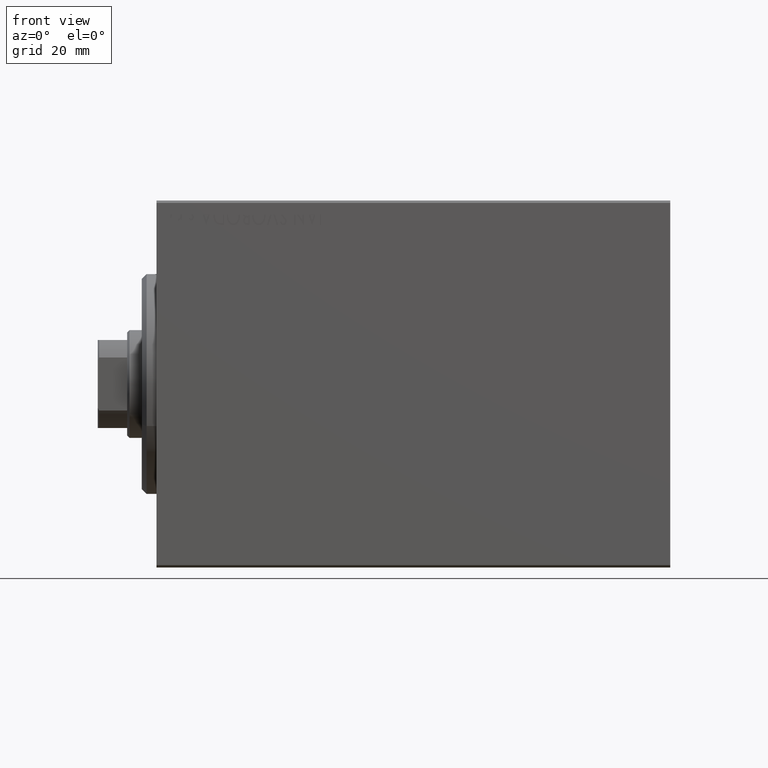
[diagram: clean part render]
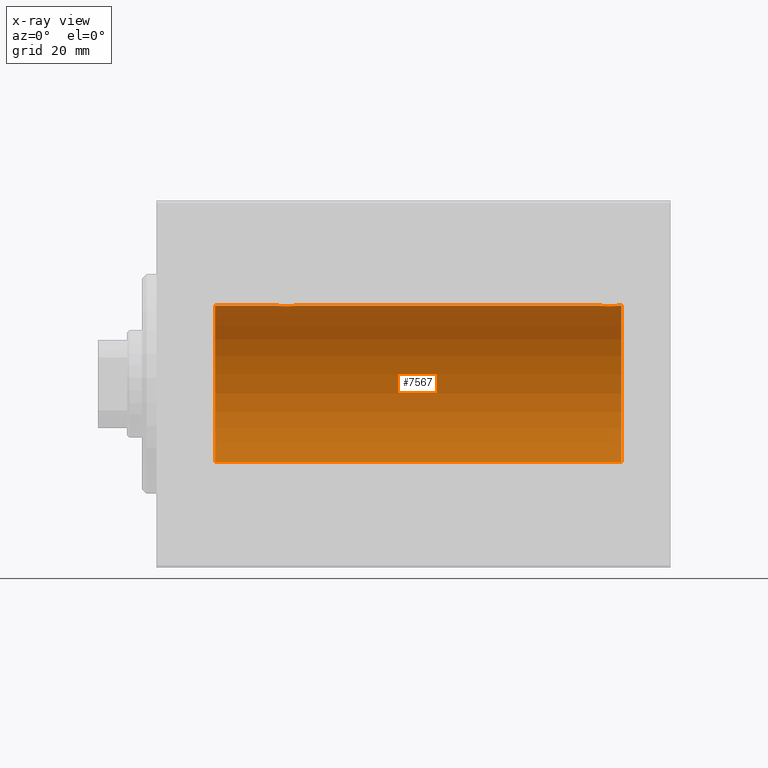
[diagram: x-ray — body ghosted, one internal face saturated and labeled with its STEP entity id]
A machine part, front view, then the same camera in x-ray: the body is ghosted and one INTERNAL B-rep face — a face not visible from any outside direction — is saturated and labeled: STEP entity #7567.
In plain terms, the highlighted cylindrical surface (partial cylindrical patch) has radius 16 mm, axis along (-1, -0, -0).
Its self-contained STEP definition (entity closure, byte-faithful):
#452 = CARTESIAN_POINT ( 'NONE',  ( 90.99262839687573035, 1.321075116345886258, 15.94564302722882942 ) ) ;
#590 = CARTESIAN_POINT ( 'NONE',  ( 27.50659181559580801, 1.747750603376303058, 15.90457341008072412 ) ) ;
#792 = DIRECTION ( 'NONE',  ( 0.000000000000000000, 0.000000000000000000, 1.000000000000000000 ) ) ;
#811 = CARTESIAN_POINT ( 'NONE',  ( 28.09051504852098802, 1.219564485341770865, 15.95382484008322699 ) ) ;
#1017 = CARTESIAN_POINT ( 'NONE',  ( 25.85613031966986952, 1.898058445420888196, 15.88709929148890510 ) ) ;
#1096 = CARTESIAN_POINT ( 'NONE',  ( 94.29713414748218270, 0.8874076679346769581, 15.97583181162460697 ) ) ;
#1298 = CARTESIAN_POINT ( 'NONE',  ( 11.99999999999999645, 1.959434878635765131E-15, -16.00000000000000000 ) ) ;
#1916 = CARTESIAN_POINT ( 'NONE',  ( 94.50000000000000000, 3.332617433452402987E-15, 16.00000000000000000 ) ) ;
#2577 = DIRECTION ( 'NONE',  ( 0.000000000000000000, 0.000000000000000000, 1.000000000000000000 ) ) ;
#3782 = CARTESIAN_POINT ( 'NONE',  ( 91.28032342557720824, 1.590393755196005010, 15.92092783521424337 ) ) ;
#3921 = CARTESIAN_POINT ( 'NONE',  ( 24.50000000000000000, -2.739674480787312950E-23, 16.00000000000000000 ) ) ;
#4364 = CARTESIAN_POINT ( 'NONE',  ( 26.37014691649502041, 2.000047931387144207, 15.87450182760079542 ) ) ;
#4757 = DIRECTION ( 'NONE',  ( -1.000000000000000000, -0.000000000000000000, -0.000000000000000000 ) ) ;
#6874 = VERTEX_POINT ( 'NONE', #15608 ) ;
#7566 = CARTESIAN_POINT ( 'NONE',  ( 94.50000000000001421, 0.1322838750249263340, 16.00000000000000000 ) ) ;
#7567 = ADVANCED_FACE ( 'NONE', ( #21270 ), #38580, .F. ) ;
#7699 = CARTESIAN_POINT ( 'NONE',  ( 24.70250071394960756, 0.8866640484200106753, 15.97587307151817804 ) ) ;
#7924 = CARTESIAN_POINT ( 'NONE',  ( 24.50000000000000711, 0.1305944228192306433, 16.00000000000000000 ) ) ;
#8130 = CARTESIAN_POINT ( 'NONE',  ( 28.49999999999998579, 0.1322838750249258899, 15.99999999999999289 ) ) ;
#8428 = CARTESIAN_POINT ( 'NONE',  ( 90.50000000000000000, -2.738806733791569837E-23, 16.00000000000000000 ) ) ;
#8660 = EDGE_CURVE ( 'NONE', #32094, #22863, #37928, .T. ) ;
#10302 = ORIENTED_EDGE ( 'NONE', *, *, #30224, .T. ) ;
#10366 = EDGE_CURVE ( 'NONE', #21991, #6874, #16231, .T. ) ;
#10644 = CIRCLE ( 'NONE', #36208, 16.00000000000000000 ) ;
#10826 = CARTESIAN_POINT ( 'NONE',  ( 25.61382242942730159, 1.797743958659259400, 15.89876304682112007 ) ) ;
#11251 = CARTESIAN_POINT ( 'NONE',  ( 24.56430947073870641, 0.5198215460038738689, 15.99206840425679665 ) ) ;
#11336 = CARTESIAN_POINT ( 'NONE',  ( 92.76191462762255924, 1.999903730784154510, 15.87451999516785506 ) ) ;
#11551 = CARTESIAN_POINT ( 'NONE',  ( 90.76517329325048422, 1.003662148334362181, 15.96885838080210718 ) ) ;
#11667 = CARTESIAN_POINT ( 'NONE',  ( 95.00000000000000000, 1.959434878635765131E-15, -16.00000000000000000 ) ) ;
#12219 = EDGE_CURVE ( 'NONE', #14564, #40558, #10644, .T. ) ;
#12690 = CARTESIAN_POINT ( 'NONE',  ( 95.00000000000000000, 0.000000000000000000, 16.00000000000000000 ) ) ;
#13719 = EDGE_LOOP ( 'NONE', ( #30511, #24932, #30847, #10302, #36185, #43983, #18518, #26524 ) ) ;
#13782 = LINE ( 'NONE', #31365, #33824 ) ;
#14032 = CARTESIAN_POINT ( 'NONE',  ( 90.90998471899879974, 1.220169175415114715, 15.95377581882984330 ) ) ;
#14168 = CARTESIAN_POINT ( 'NONE',  ( 26.76191462762254858, 1.999903730784158284, 15.87451999516785861 ) ) ;
#14564 = VERTEX_POINT ( 'NONE', #28570 ) ;
#14679 = CARTESIAN_POINT ( 'NONE',  ( 94.23568098498260781, 1.002241074716282654, 15.96895041604535770 ) ) ;
#14813 = CARTESIAN_POINT ( 'NONE',  ( 25.28032342557722245, 1.590393755196002568, 15.92092783521424337 ) ) ;
#14895 = CARTESIAN_POINT ( 'NONE',  ( 90.60216273501104922, 0.6445079780200539954, 15.98747331501412461 ) ) ;
#15608 = CARTESIAN_POINT ( 'NONE',  ( 28.49999999999999645, -1.179009551424829015E-15, 16.00000000000000000 ) ) ;
#16231 = LINE ( 'NONE', #20247, #29913 ) ;
#16830 = DIRECTION ( 'NONE',  ( -1.000000000000000000, 0.000000000000000000, 0.000000000000000000 ) ) ;
#16964 = EDGE_CURVE ( 'NONE', #18080, #14564, #39363, .T. ) ;
#17158 = CARTESIAN_POINT ( 'NONE',  ( 91.61382242942730159, 1.797743958659252961, 15.89876304682112718 ) ) ;
#17371 = CARTESIAN_POINT ( 'NONE',  ( 91.17924175171070544, 1.507649250492133497, 15.92908549642227101 ) ) ;
#17417 = EDGE_CURVE ( 'NONE', #6874, #18080, #29668, .T. ) ;
#17507 = CARTESIAN_POINT ( 'NONE',  ( 28.49999999999999645, -1.179009551424829015E-15, 16.00000000000000000 ) ) ;
#17590 = CARTESIAN_POINT ( 'NONE',  ( 94.00610712468245822, 1.322357532253816137, 15.94553003295877680 ) ) ;
#18080 = VERTEX_POINT ( 'NONE', #3921 ) ;
#18160 = CARTESIAN_POINT ( 'NONE',  ( 25.49688752964961225, 1.735145127817744548, 15.90580292899658410 ) ) ;
#18518 = ORIENTED_EDGE ( 'NONE', *, *, #16964, .T. ) ;
#20247 = CARTESIAN_POINT ( 'NONE',  ( 95.00000000000000000, 0.000000000000000000, 16.00000000000000000 ) ) ;
#20725 = CARTESIAN_POINT ( 'NONE',  ( 93.02531756459403312, 1.947280337074166034, 15.88137861827786779 ) ) ;
#20940 = CARTESIAN_POINT ( 'NONE',  ( 94.48700524008411605, 0.2623312429553334990, 15.99836091803360105 ) ) ;
#21077 = CARTESIAN_POINT ( 'NONE',  ( 28.39758870055593221, 0.6452446332038169752, 15.98744362947834929 ) ) ;
#21148 = EDGE_CURVE ( 'NONE', #26767, #40558, #13782, .T. ) ;
#21160 = CARTESIAN_POINT ( 'NONE',  ( 94.43611326682062668, 0.5181437283162090290, 15.99211983514074653 ) ) ;
#21270 = FACE_OUTER_BOUND ( 'NONE', #13719, .T. ) ;
#21295 = CARTESIAN_POINT ( 'NONE',  ( 28.48700524008413026, 0.2623312429553321667, 15.99836091803360105 ) ) ;
#21512 = CARTESIAN_POINT ( 'NONE',  ( 25.17924175171067347, 1.507649250492133275, 15.92908549642226745 ) ) ;
#21610 = CARTESIAN_POINT ( 'NONE',  ( 95.00000000000000000, 0.000000000000000000, 0.000000000000000000 ) ) ;
#21941 = CARTESIAN_POINT ( 'NONE',  ( 28.29713414748220757, 0.8874076679346784013, 15.97583181162461408 ) ) ;
#21991 = VERTEX_POINT ( 'NONE', #41757 ) ;
#22021 = CARTESIAN_POINT ( 'NONE',  ( 90.70250071394963243, 0.8866640484200096761, 15.97587307151818514 ) ) ;
#22029 = AXIS2_PLACEMENT_3D ( 'NONE', #31072, #4757, #792 ) ;
#22863 = VERTEX_POINT ( 'NONE', #1916 ) ;
#22933 = DIRECTION ( 'NONE',  ( -1.000000000000000000, -0.000000000000000000, -0.000000000000000000 ) ) ;
#24261 = DIRECTION ( 'NONE',  ( -1.000000000000000000, -0.000000000000000000, -0.000000000000000000 ) ) ;
#24631 = CARTESIAN_POINT ( 'NONE',  ( 27.02531756459404733, 1.947280337074166257, 15.88137861827786423 ) ) ;
#24852 = CARTESIAN_POINT ( 'NONE',  ( 28.43611326682062312, 0.5181437283162076968, 15.99211983514074120 ) ) ;
#24932 = ORIENTED_EDGE ( 'NONE', *, *, #35966, .F. ) ;
#24940 = CARTESIAN_POINT ( 'NONE',  ( 92.23748416992103216, 1.987008272775790951, 15.87616016863256974 ) ) ;
#26267 = CIRCLE ( 'NONE', #41864, 16.00000000000000000 ) ;
#26524 = ORIENTED_EDGE ( 'NONE', *, *, #12219, .T. ) ;
#26767 = VERTEX_POINT ( 'NONE', #11667 ) ;
#27509 = B_SPLINE_CURVE_WITH_KNOTS ( 'NONE', 3,
 ( #37818, #7566, #20940, #21160, #34712, #1096, #14679, #27625, #17590, #28277, #41811, #20725, #11336, #30957, #24940, #38472, #34062, #17158, #34278, #3782, #17371, #452, #14032, #11551, #22021, #14895, #32455, #28495, #35564, #8428 ),
 .UNSPECIFIED., .F., .F.,
 ( 4, 2, 2, 2, 2, 2, 2, 2, 2, 2, 2, 2, 2, 2, 4 ),
 ( 3.238198060903272840E-18, 0.0003911894522871311531, 0.0007823789045742590535, 0.001173568356861386629, 0.001564757809148514204, 0.002347136713722738997, 0.003129515618296964657, 0.003520705070584077487, 0.003911894522871189883, 0.004303083975158303147, 0.004694273427445414676, 0.005085462879732527940, 0.005476652332019640336, 0.005867841784306752732, 0.006259031236593865129 ),
 .UNSPECIFIED. ) ;
#27625 = CARTESIAN_POINT ( 'NONE',  ( 94.09051504852097025, 1.219564485341768423, 15.95382484008322344 ) ) ;
#27768 = CARTESIAN_POINT ( 'NONE',  ( 26.23748416992100729, 1.987008272775793394, 15.87616016863255552 ) ) ;
#27983 = CARTESIAN_POINT ( 'NONE',  ( 25.98086902289887234, 1.935876924222079465, 15.88247600692092476 ) ) ;
#28198 = CARTESIAN_POINT ( 'NONE',  ( 27.72956111739784646, 1.598790766515150619, 15.92099550861380486 ) ) ;
#28277 = CARTESIAN_POINT ( 'NONE',  ( 93.72956111739786422, 1.598790766515145512, 15.92099550861380841 ) ) ;
#28495 = CARTESIAN_POINT ( 'NONE',  ( 90.51309075167874596, 0.2632563459770843051, 15.99834873924246814 ) ) ;
#28570 = CARTESIAN_POINT ( 'NONE',  ( 11.99999999999999645, 0.000000000000000000, 16.00000000000000000 ) ) ;
#29163 = CARTESIAN_POINT ( 'NONE',  ( 95.00000000000000000, 0.000000000000000000, 16.00000000000000000 ) ) ;
#29591 = DIRECTION ( 'NONE',  ( -1.000000000000000000, -0.000000000000000000, -0.000000000000000000 ) ) ;
#29668 = B_SPLINE_CURVE_WITH_KNOTS ( 'NONE', 3,
 ( #17507, #8130, #21295, #24852, #21077, #21941, #35266, #811, #31523, #28198, #590, #24631, #14168, #4364, #27768, #27983, #1017, #10826, #18160, #14813, #21512, #41516, #38169, #34626, #7699, #41729, #11251, #38393, #7924, #35056 ),
 .UNSPECIFIED., .F., .F.,
 ( 4, 2, 2, 2, 2, 2, 2, 2, 2, 2, 2, 2, 2, 2, 4 ),
 ( 1.717047458274812411E-18, 0.0003911894522871176005, 0.0007823789045742334664, 0.001173568356861349332, 0.001564757809148465198, 0.002347136713722698231, 0.003129515618296931697, 0.003520705070584047996, 0.003911894522871164730, 0.004303083975158281463, 0.004694273427445398196, 0.005085462879732514062, 0.005476652332019630795, 0.005867841784306747528, 0.006259031236593864261 ),
 .UNSPECIFIED. ) ;
#29913 = VECTOR ( 'NONE', #29591, 1000.000000000000000 ) ;
#30224 = EDGE_CURVE ( 'NONE', #22863, #21991, #27509, .T. ) ;
#30511 = ORIENTED_EDGE ( 'NONE', *, *, #21148, .F. ) ;
#30847 = ORIENTED_EDGE ( 'NONE', *, *, #8660, .T. ) ;
#30957 = CARTESIAN_POINT ( 'NONE',  ( 92.37014691649501685, 2.000047931387141542, 15.87450182760079542 ) ) ;
#31072 = CARTESIAN_POINT ( 'NONE',  ( 95.00000000000000000, 0.000000000000000000, 0.000000000000000000 ) ) ;
#31365 = CARTESIAN_POINT ( 'NONE',  ( 95.00000000000000000, 1.959434878635765131E-15, -16.00000000000000000 ) ) ;
#31523 = CARTESIAN_POINT ( 'NONE',  ( 28.00610712468246177, 1.322357532253822576, 15.94553003295877325 ) ) ;
#31625 = DIRECTION ( 'NONE',  ( 0.000000000000000000, 0.000000000000000000, 1.000000000000000000 ) ) ;
#32094 = VERTEX_POINT ( 'NONE', #12690 ) ;
#32455 = CARTESIAN_POINT ( 'NONE',  ( 90.56430947073872062, 0.5198215460038744240, 15.99206840425678955 ) ) ;
#33067 = CARTESIAN_POINT ( 'NONE',  ( 11.99999999999999645, 0.000000000000000000, 0.000000000000000000 ) ) ;
#33824 = VECTOR ( 'NONE', #24261, 1000.000000000000000 ) ;
#34062 = CARTESIAN_POINT ( 'NONE',  ( 91.85613031966987307, 1.898058445420883311, 15.88709929148890510 ) ) ;
#34127 = VECTOR ( 'NONE', #34603, 1000.000000000000000 ) ;
#34278 = CARTESIAN_POINT ( 'NONE',  ( 91.49688752964962646, 1.735145127817746769, 15.90580292899658765 ) ) ;
#34603 = DIRECTION ( 'NONE',  ( -1.000000000000000000, -0.000000000000000000, -0.000000000000000000 ) ) ;
#34626 = CARTESIAN_POINT ( 'NONE',  ( 24.76517329325045580, 1.003662148334365956, 15.96885838080210362 ) ) ;
#34712 = CARTESIAN_POINT ( 'NONE',  ( 94.39758870055591444, 0.6452446332038163090, 15.98744362947834574 ) ) ;
#35056 = CARTESIAN_POINT ( 'NONE',  ( 24.50000000000000000, -2.739674480787312950E-23, 16.00000000000000000 ) ) ;
#35266 = CARTESIAN_POINT ( 'NONE',  ( 28.23568098498261136, 1.002241074716284208, 15.96895041604535770 ) ) ;
#35564 = CARTESIAN_POINT ( 'NONE',  ( 90.50000000000000000, 0.1305944228192300882, 16.00000000000000000 ) ) ;
#35966 = EDGE_CURVE ( 'NONE', #32094, #26767, #26267, .T. ) ;
#36185 = ORIENTED_EDGE ( 'NONE', *, *, #10366, .T. ) ;
#36208 = AXIS2_PLACEMENT_3D ( 'NONE', #33067, #16830, #2577 ) ;
#37818 = CARTESIAN_POINT ( 'NONE',  ( 94.50000000000000000, 3.332617433452402987E-15, 16.00000000000000000 ) ) ;
#37928 = LINE ( 'NONE', #41924, #34127 ) ;
#38169 = CARTESIAN_POINT ( 'NONE',  ( 24.90998471899876776, 1.220169175415118490, 15.95377581882983797 ) ) ;
#38393 = CARTESIAN_POINT ( 'NONE',  ( 24.51309075167874596, 0.2632563459770828063, 15.99834873924246814 ) ) ;
#38472 = CARTESIAN_POINT ( 'NONE',  ( 91.98086902289888656, 1.935876924222077688, 15.88247600692093542 ) ) ;
#38498 = DIRECTION ( 'NONE',  ( -1.000000000000000000, 0.000000000000000000, 0.000000000000000000 ) ) ;
#38580 = CYLINDRICAL_SURFACE ( 'NONE', #22029, 16.00000000000000000 ) ;
#39363 = LINE ( 'NONE', #29163, #40084 ) ;
#40084 = VECTOR ( 'NONE', #22933, 1000.000000000000000 ) ;
#40558 = VERTEX_POINT ( 'NONE', #1298 ) ;
#41516 = CARTESIAN_POINT ( 'NONE',  ( 24.99262839687571258, 1.321075116345884704, 15.94564302722882942 ) ) ;
#41729 = CARTESIAN_POINT ( 'NONE',  ( 24.60216273501104922, 0.6445079780200552166, 15.98747331501412461 ) ) ;
#41757 = CARTESIAN_POINT ( 'NONE',  ( 90.50000000000000000, -2.738806733791569837E-23, 16.00000000000000000 ) ) ;
#41811 = CARTESIAN_POINT ( 'NONE',  ( 93.50659181559579736, 1.747750603376306389, 15.90457341008072412 ) ) ;
#41864 = AXIS2_PLACEMENT_3D ( 'NONE', #21610, #38498, #31625 ) ;
#41924 = CARTESIAN_POINT ( 'NONE',  ( 95.00000000000000000, 0.000000000000000000, 16.00000000000000000 ) ) ;
#43983 = ORIENTED_EDGE ( 'NONE', *, *, #17417, .T. ) ;